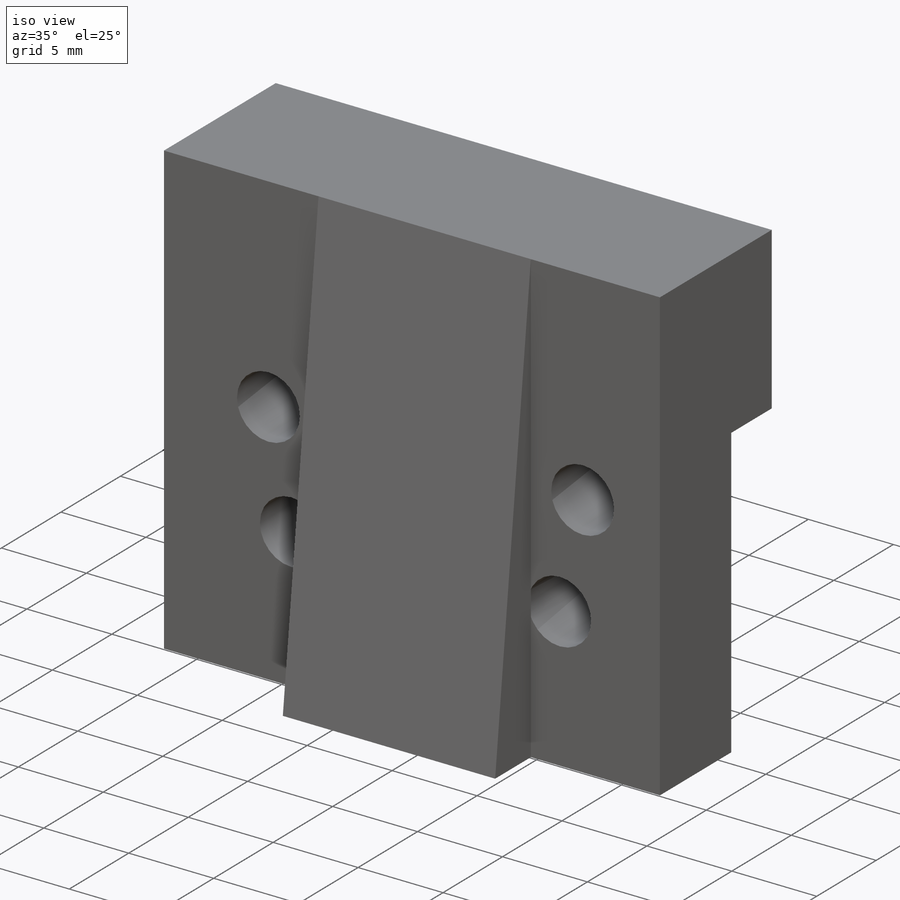
[diagram: iso view]
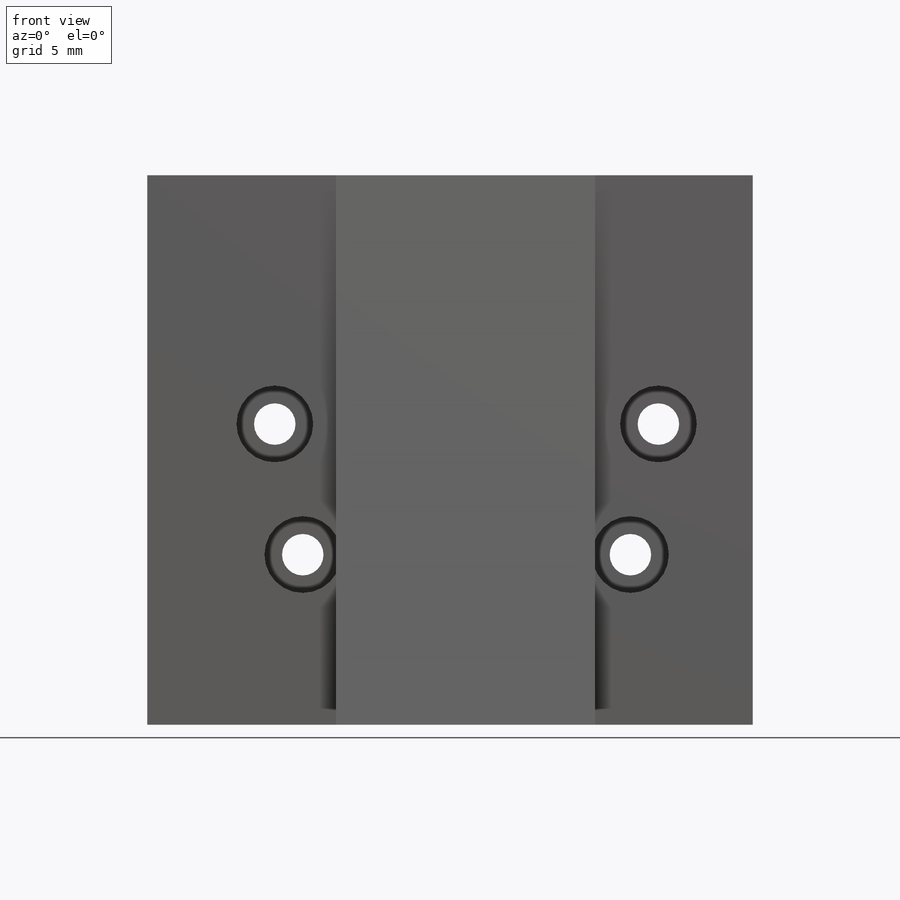
[diagram: front view]
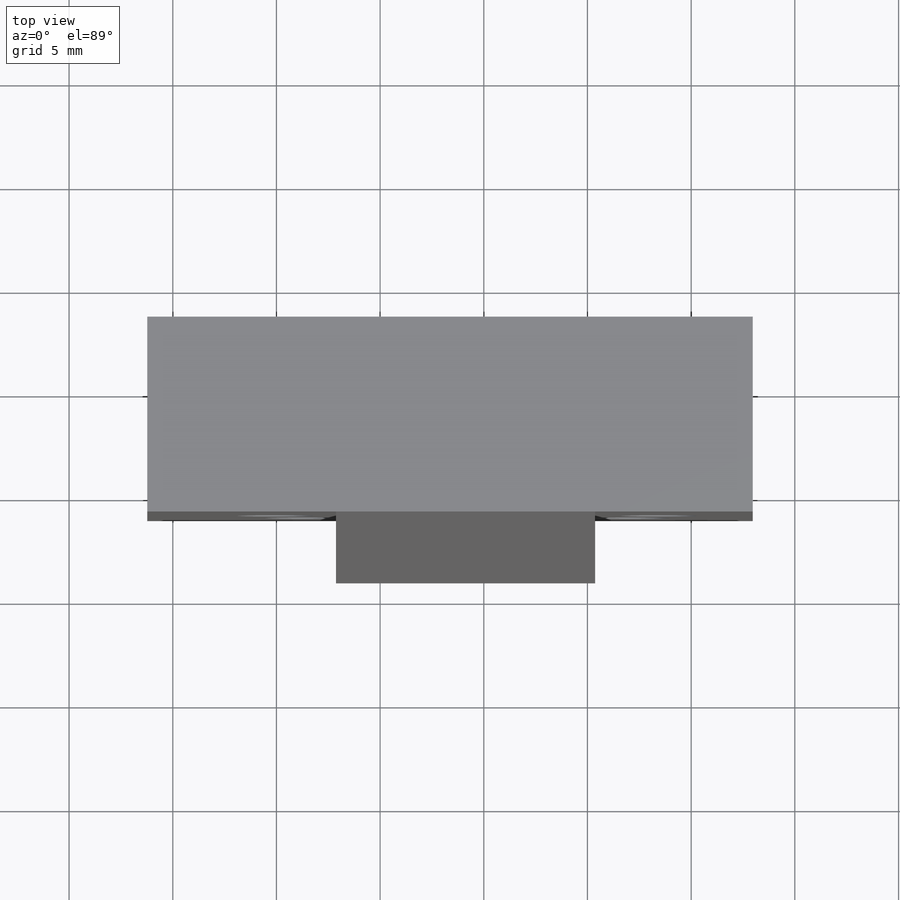
[diagram: top view]
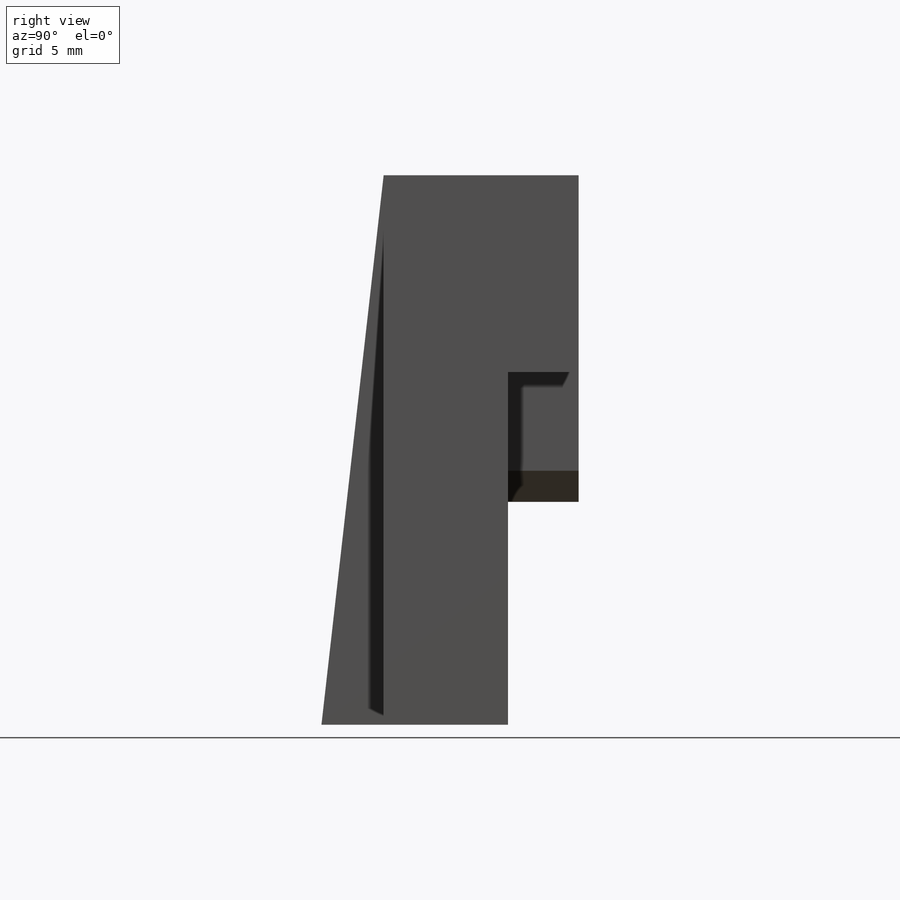
[diagram: right view]
SOLIDWORKS PART (.sldprt)
format: sldprt  version: not decoded by parser v0  size: 238,592 bytes
history: native  units: mm
features: sketch x4, extrude x4, material x1 (+13 scaffold rows collapsed)
feature tree (22):
  scaffold x13  (default folders/planes/origin — collapsed)
  material  "Material <not specified>"
  sketch  "Sketch1"  dims[c1.D1=2.0mm c1.D6=2.0mm c1.D8=2.0mm c1.D2=29.2mm c1.D3=12.0mm c1.D4=23.5mm c1.D5=6.2mm c2.D4=23.5mm c2.D5=12.4mm c3.D5=90.0deg c4.D5=12.4mm c4.D6=5.1mm c4.D7=1.7mm c4.D4=10.75mm c5.D5=5.25mm c5.D9=10.5mm c5.D10=9.25mm c5.D11=9.25mm]
  extrude  "Boss-Extrude2"  Depth=1.7mm
  sketch  "Sketch2"  dims[c1.D1=3.5mm c1.D8=3.5mm c2.D1=3.7mm c2.D6=3.7mm c2.D2=29.2mm c2.D3=8.2mm c2.D4=23.5mm c2.D5=12.4mm c3.D6=5.1mm c3.D7=1.7mm c3.D2=29.2mm c3.D3=12.0mm c3.D4=5.1mm c3.D5=1.7mm c4.D7=10.75mm c4.D8=10.5mm c4.D9=9.25mm]
  extrude  "Boss-Extrude3"  Depth=4.3mm
  sketch  "Sketch3"  dims[D1=9.5mm]
  extrude  "Boss-Extrude4"  Depth=3.4mm
  sketch  "Sketch4"  dims[D1=3.0mm]
  extrude  "Boss-Extrude5"  Depth=12.5mm
decode coverage: 8 of 8 modeling features carry decoded parameters
note: suppression state not decoded; provenance and decode notes live in map.json
